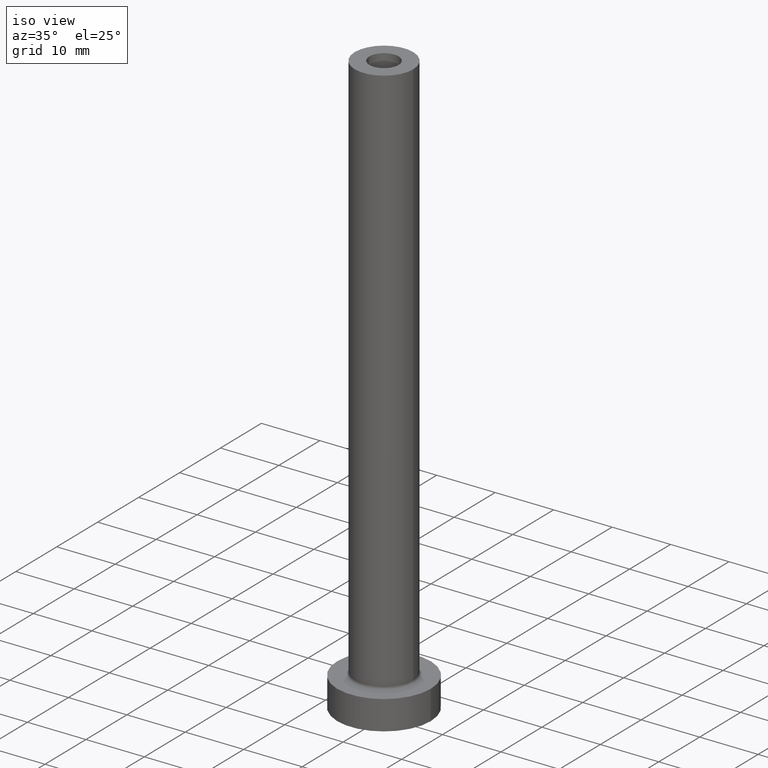
[diagram: clean part render]
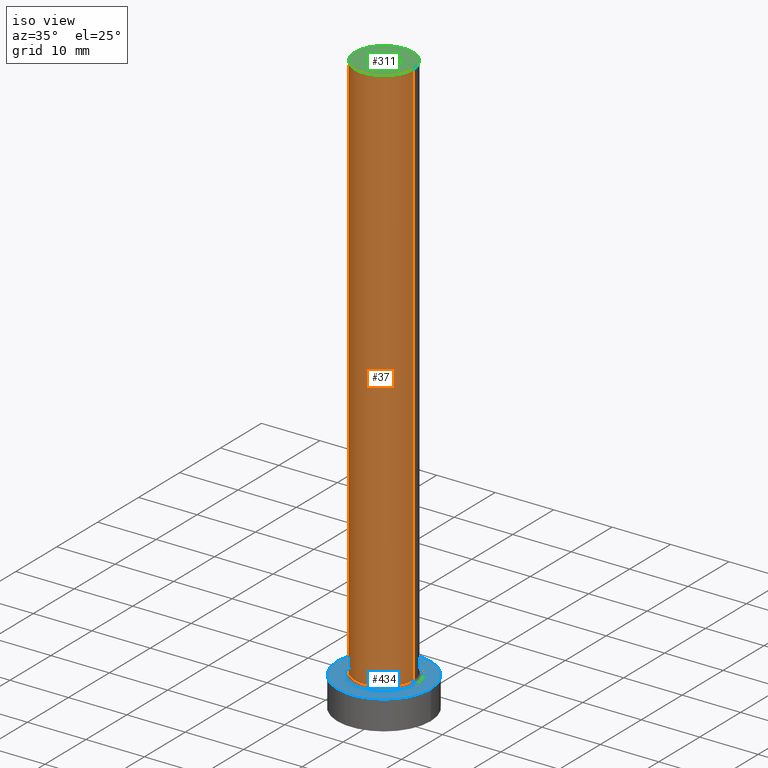
[diagram: same view with three faces highlighted in distinct colors, each labeled with its STEP entity id]
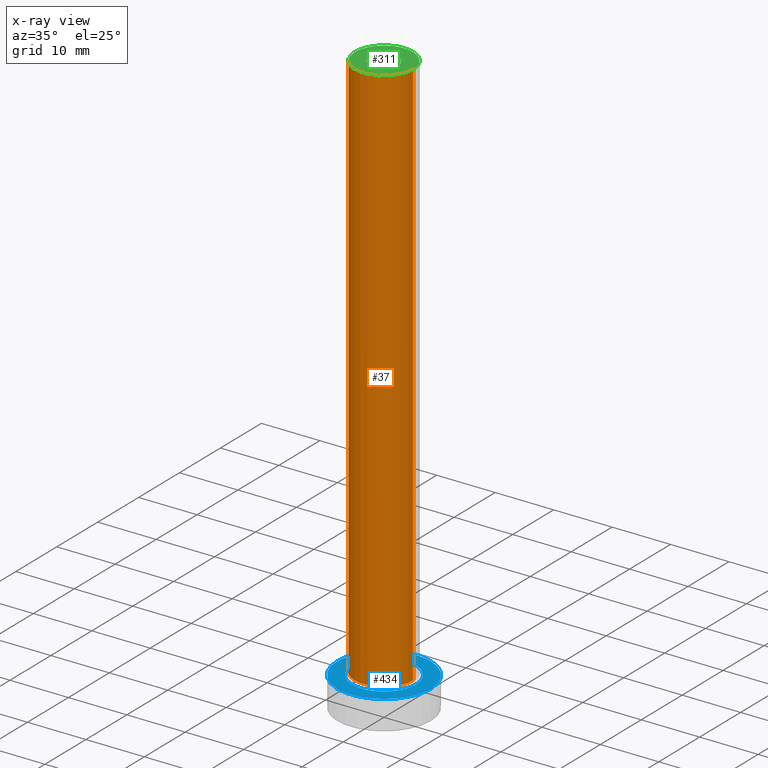
[diagram: x-ray of the same camera — body ghosted, the three highlighted faces saturated]
A machine part, iso view with three faces highlighted in distinct colors.
The next image is the same camera in x-ray (body ghosted, the three faces saturated) — at least one of them is partly hidden behind the body in this view.
Their STEP definitions:

[orange] entity #37 — the highlighted cylindrical surface (edge-blend (fillet) strip) has radius 5 mm, axis along (-0, -0, -1).
#5 = CARTESIAN_POINT ( 'NONE',  ( 0.000000000000000000, 0.000000000000000000, 5.500000000000005329 ) ) ;
#11 = EDGE_LOOP ( 'NONE', ( #384, #90, #82, #448 ) ) ;
#26 = CARTESIAN_POINT ( 'NONE',  ( 5.000000000000000000, 6.123233995736766282E-16, 100.0000000000000000 ) ) ;
#37 = ADVANCED_FACE ( 'NONE', ( #103 ), #56, .T. ) ;
#42 = AXIS2_PLACEMENT_3D ( 'NONE', #5, #181, #370 ) ;
#49 = CARTESIAN_POINT ( 'NONE',  ( -5.000000000000000000, 0.000000000000000000, 5.500000000000005329 ) ) ;
#56 = CYLINDRICAL_SURFACE ( 'NONE', #75, 5.000000000000000000 ) ;
#57 = LINE ( 'NONE', #26, #342 ) ;
#75 = AXIS2_PLACEMENT_3D ( 'NONE', #194, #337, #164 ) ;
#81 = LINE ( 'NONE', #330, #250 ) ;
#82 = ORIENTED_EDGE ( 'NONE', *, *, #135, .T. ) ;
#87 = EDGE_CURVE ( 'NONE', #168, #98, #364, .T. ) ;
#90 = ORIENTED_EDGE ( 'NONE', *, *, #382, .F. ) ;
#92 = VERTEX_POINT ( 'NONE', #403 ) ;
#98 = VERTEX_POINT ( 'NONE', #154 ) ;
#103 = FACE_OUTER_BOUND ( 'NONE', #11, .T. ) ;
#130 = AXIS2_PLACEMENT_3D ( 'NONE', #420, #320, #245 ) ;
#135 = EDGE_CURVE ( 'NONE', #92, #168, #81, .T. ) ;
#154 = CARTESIAN_POINT ( 'NONE',  ( 5.000000000000000000, 6.123233995736766282E-16, 5.500000000000005329 ) ) ;
#164 = DIRECTION ( 'NONE',  ( -1.000000000000000000, 0.000000000000000000, 0.000000000000000000 ) ) ;
#168 = VERTEX_POINT ( 'NONE', #49 ) ;
#181 = DIRECTION ( 'NONE',  ( 0.000000000000000000, 0.000000000000000000, 1.000000000000000000 ) ) ;
#184 = VERTEX_POINT ( 'NONE', #432 ) ;
#194 = CARTESIAN_POINT ( 'NONE',  ( 0.000000000000000000, 0.000000000000000000, 100.0000000000000000 ) ) ;
#245 = DIRECTION ( 'NONE',  ( 1.000000000000000000, 0.000000000000000000, 0.000000000000000000 ) ) ;
#250 = VECTOR ( 'NONE', #360, 1000.000000000000000 ) ;
#275 = EDGE_CURVE ( 'NONE', #184, #98, #57, .T. ) ;
#320 = DIRECTION ( 'NONE',  ( 0.000000000000000000, 0.000000000000000000, 1.000000000000000000 ) ) ;
#330 = CARTESIAN_POINT ( 'NONE',  ( -5.000000000000000000, 0.000000000000000000, 100.0000000000000000 ) ) ;
#337 = DIRECTION ( 'NONE',  ( -0.000000000000000000, -0.000000000000000000, -1.000000000000000000 ) ) ;
#339 = DIRECTION ( 'NONE',  ( -0.000000000000000000, -0.000000000000000000, -1.000000000000000000 ) ) ;
#342 = VECTOR ( 'NONE', #339, 1000.000000000000000 ) ;
#360 = DIRECTION ( 'NONE',  ( -0.000000000000000000, -0.000000000000000000, -1.000000000000000000 ) ) ;
#364 = CIRCLE ( 'NONE', #42, 5.000000000000000000 ) ;
#370 = DIRECTION ( 'NONE',  ( 1.000000000000000000, 0.000000000000000000, 0.000000000000000000 ) ) ;
#382 = EDGE_CURVE ( 'NONE', #92, #184, #404, .T. ) ;
#384 = ORIENTED_EDGE ( 'NONE', *, *, #275, .F. ) ;
#403 = CARTESIAN_POINT ( 'NONE',  ( -5.000000000000000000, 0.000000000000000000, 100.0000000000000000 ) ) ;
#404 = CIRCLE ( 'NONE', #130, 5.000000000000000000 ) ;
#420 = CARTESIAN_POINT ( 'NONE',  ( 0.000000000000000000, 0.000000000000000000, 100.0000000000000000 ) ) ;
#432 = CARTESIAN_POINT ( 'NONE',  ( 5.000000000000000000, 6.123233995736766282E-16, 100.0000000000000000 ) ) ;
#448 = ORIENTED_EDGE ( 'NONE', *, *, #87, .T. ) ;

[blue] entity #434 — the highlighted planar face has unit normal (0, 0, 1).
#1 = CIRCLE ( 'NONE', #333, 8.000000000000000000 ) ;
#3 = FACE_BOUND ( 'NONE', #288, .T. ) ;
#4 = DIRECTION ( 'NONE',  ( 1.000000000000000000, 0.000000000000000000, -0.000000000000000000 ) ) ;
#8 = ORIENTED_EDGE ( 'NONE', *, *, #242, .T. ) ;
#38 = DIRECTION ( 'NONE',  ( 0.000000000000000000, 0.000000000000000000, 1.000000000000000000 ) ) ;
#39 = CARTESIAN_POINT ( 'NONE',  ( 8.000000000000000000, 9.797174393178825657E-16, 5.000000000000000000 ) ) ;
#74 = CARTESIAN_POINT ( 'NONE',  ( 0.000000000000000000, 0.000000000000000000, 5.000000000000000000 ) ) ;
#85 = DIRECTION ( 'NONE',  ( 0.000000000000000000, 0.000000000000000000, 1.000000000000000000 ) ) ;
#86 = ORIENTED_EDGE ( 'NONE', *, *, #405, .T. ) ;
#88 = CARTESIAN_POINT ( 'NONE',  ( 0.000000000000000000, 0.000000000000000000, 5.000000000000000000 ) ) ;
#96 = VERTEX_POINT ( 'NONE', #361 ) ;
#104 = DIRECTION ( 'NONE',  ( 1.000000000000000000, 0.000000000000000000, 0.000000000000000000 ) ) ;
#108 = CARTESIAN_POINT ( 'NONE',  ( 0.000000000000000000, 0.000000000000000000, 5.000000000000000000 ) ) ;
#118 = CARTESIAN_POINT ( 'NONE',  ( 0.000000000000000000, 0.000000000000000000, 5.000000000000000000 ) ) ;
#128 = CIRCLE ( 'NONE', #260, 5.500000000000000000 ) ;
#137 = AXIS2_PLACEMENT_3D ( 'NONE', #108, #143, #104 ) ;
#143 = DIRECTION ( 'NONE',  ( -0.000000000000000000, -0.000000000000000000, -1.000000000000000000 ) ) ;
#149 = DIRECTION ( 'NONE',  ( 1.000000000000000000, 0.000000000000000000, 0.000000000000000000 ) ) ;
#150 = VERTEX_POINT ( 'NONE', #39 ) ;
#167 = EDGE_CURVE ( 'NONE', #150, #444, #284, .T. ) ;
#187 = EDGE_LOOP ( 'NONE', ( #8, #345 ) ) ;
#196 = AXIS2_PLACEMENT_3D ( 'NONE', #74, #38, #4 ) ;
#204 = EDGE_CURVE ( 'NONE', #340, #96, #128, .T. ) ;
#216 = DIRECTION ( 'NONE',  ( -0.000000000000000000, -0.000000000000000000, -1.000000000000000000 ) ) ;
#225 = DIRECTION ( 'NONE',  ( 1.000000000000000000, 0.000000000000000000, 0.000000000000000000 ) ) ;
#242 = EDGE_CURVE ( 'NONE', #444, #150, #1, .T. ) ;
#249 = FACE_OUTER_BOUND ( 'NONE', #187, .T. ) ;
#260 = AXIS2_PLACEMENT_3D ( 'NONE', #88, #216, #225 ) ;
#262 = CARTESIAN_POINT ( 'NONE',  ( 0.000000000000000000, 0.000000000000000000, 5.000000000000000000 ) ) ;
#284 = CIRCLE ( 'NONE', #349, 8.000000000000000000 ) ;
#288 = EDGE_LOOP ( 'NONE', ( #86, #326 ) ) ;
#326 = ORIENTED_EDGE ( 'NONE', *, *, #204, .T. ) ;
#333 = AXIS2_PLACEMENT_3D ( 'NONE', #262, #407, #449 ) ;
#340 = VERTEX_POINT ( 'NONE', #460 ) ;
#345 = ORIENTED_EDGE ( 'NONE', *, *, #167, .T. ) ;
#348 = CARTESIAN_POINT ( 'NONE',  ( -8.000000000000000000, 0.000000000000000000, 5.000000000000000000 ) ) ;
#349 = AXIS2_PLACEMENT_3D ( 'NONE', #118, #85, #149 ) ;
#361 = CARTESIAN_POINT ( 'NONE',  ( 5.500000000000000000, 0.000000000000000000, 5.000000000000002665 ) ) ;
#383 = CIRCLE ( 'NONE', #137, 5.500000000000000000 ) ;
#392 = PLANE ( 'NONE',  #196 ) ;
#405 = EDGE_CURVE ( 'NONE', #96, #340, #383, .T. ) ;
#407 = DIRECTION ( 'NONE',  ( 0.000000000000000000, 0.000000000000000000, 1.000000000000000000 ) ) ;
#434 = ADVANCED_FACE ( 'NONE', ( #3, #249 ), #392, .T. ) ;
#444 = VERTEX_POINT ( 'NONE', #348 ) ;
#449 = DIRECTION ( 'NONE',  ( 1.000000000000000000, 0.000000000000000000, 0.000000000000000000 ) ) ;
#460 = CARTESIAN_POINT ( 'NONE',  ( -5.500000000000000000, 6.735557395310442023E-16, 5.000000000000002665 ) ) ;

[green] entity #311 — the highlighted planar face has unit normal (0, 0, 1).
#6 = CIRCLE ( 'NONE', #61, 5.000000000000000000 ) ;
#9 = EDGE_CURVE ( 'NONE', #66, #223, #355, .T. ) ;
#32 = CARTESIAN_POINT ( 'NONE',  ( 0.000000000000000000, 0.000000000000000000, 100.0000000000000000 ) ) ;
#61 = AXIS2_PLACEMENT_3D ( 'NONE', #32, #109, #283 ) ;
#66 = VERTEX_POINT ( 'NONE', #206 ) ;
#67 = EDGE_CURVE ( 'NONE', #184, #92, #6, .T. ) ;
#70 = AXIS2_PLACEMENT_3D ( 'NONE', #352, #210, #243 ) ;
#92 = VERTEX_POINT ( 'NONE', #403 ) ;
#109 = DIRECTION ( 'NONE',  ( 0.000000000000000000, 0.000000000000000000, 1.000000000000000000 ) ) ;
#124 = ORIENTED_EDGE ( 'NONE', *, *, #67, .T. ) ;
#130 = AXIS2_PLACEMENT_3D ( 'NONE', #420, #320, #245 ) ;
#134 = PLANE ( 'NONE',  #70 ) ;
#153 = ORIENTED_EDGE ( 'NONE', *, *, #382, .T. ) ;
#184 = VERTEX_POINT ( 'NONE', #432 ) ;
#206 = CARTESIAN_POINT ( 'NONE',  ( 2.500000000000000000, 3.061616997868382648E-16, 100.0000000000000000 ) ) ;
#207 = DIRECTION ( 'NONE',  ( 0.000000000000000000, 0.000000000000000000, 1.000000000000000000 ) ) ;
#210 = DIRECTION ( 'NONE',  ( 0.000000000000000000, 0.000000000000000000, 1.000000000000000000 ) ) ;
#223 = VERTEX_POINT ( 'NONE', #365 ) ;
#243 = DIRECTION ( 'NONE',  ( 1.000000000000000000, 0.000000000000000000, -0.000000000000000000 ) ) ;
#245 = DIRECTION ( 'NONE',  ( 1.000000000000000000, 0.000000000000000000, 0.000000000000000000 ) ) ;
#271 = CARTESIAN_POINT ( 'NONE',  ( 0.000000000000000000, 0.000000000000000000, 100.0000000000000000 ) ) ;
#283 = DIRECTION ( 'NONE',  ( 1.000000000000000000, 0.000000000000000000, 0.000000000000000000 ) ) ;
#297 = ORIENTED_EDGE ( 'NONE', *, *, #419, .F. ) ;
#298 = AXIS2_PLACEMENT_3D ( 'NONE', #390, #207, #354 ) ;
#302 = DIRECTION ( 'NONE',  ( 0.000000000000000000, 0.000000000000000000, 1.000000000000000000 ) ) ;
#311 = ADVANCED_FACE ( 'NONE', ( #379, #453 ), #134, .T. ) ;
#320 = DIRECTION ( 'NONE',  ( 0.000000000000000000, 0.000000000000000000, 1.000000000000000000 ) ) ;
#329 = EDGE_LOOP ( 'NONE', ( #153, #124 ) ) ;
#332 = ORIENTED_EDGE ( 'NONE', *, *, #9, .F. ) ;
#347 = EDGE_LOOP ( 'NONE', ( #297, #332 ) ) ;
#352 = CARTESIAN_POINT ( 'NONE',  ( 0.000000000000000000, 0.000000000000000000, 100.0000000000000000 ) ) ;
#354 = DIRECTION ( 'NONE',  ( 1.000000000000000000, 0.000000000000000000, 0.000000000000000000 ) ) ;
#355 = CIRCLE ( 'NONE', #402, 2.500000000000000000 ) ;
#365 = CARTESIAN_POINT ( 'NONE',  ( -2.500000000000000000, 0.000000000000000000, 100.0000000000000000 ) ) ;
#379 = FACE_BOUND ( 'NONE', #347, .T. ) ;
#382 = EDGE_CURVE ( 'NONE', #92, #184, #404, .T. ) ;
#390 = CARTESIAN_POINT ( 'NONE',  ( 0.000000000000000000, 0.000000000000000000, 100.0000000000000000 ) ) ;
#402 = AXIS2_PLACEMENT_3D ( 'NONE', #271, #302, #414 ) ;
#403 = CARTESIAN_POINT ( 'NONE',  ( -5.000000000000000000, 0.000000000000000000, 100.0000000000000000 ) ) ;
#404 = CIRCLE ( 'NONE', #130, 5.000000000000000000 ) ;
#410 = CIRCLE ( 'NONE', #298, 2.500000000000000000 ) ;
#414 = DIRECTION ( 'NONE',  ( 1.000000000000000000, 0.000000000000000000, 0.000000000000000000 ) ) ;
#419 = EDGE_CURVE ( 'NONE', #223, #66, #410, .T. ) ;
#420 = CARTESIAN_POINT ( 'NONE',  ( 0.000000000000000000, 0.000000000000000000, 100.0000000000000000 ) ) ;
#432 = CARTESIAN_POINT ( 'NONE',  ( 5.000000000000000000, 6.123233995736766282E-16, 100.0000000000000000 ) ) ;
#453 = FACE_OUTER_BOUND ( 'NONE', #329, .T. ) ;